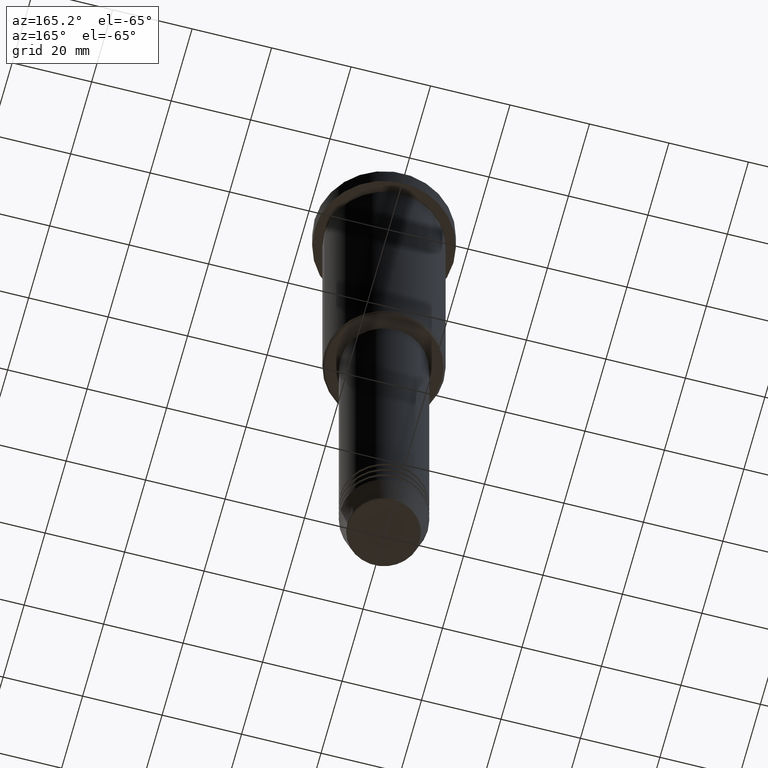
[diagram: clean part render]
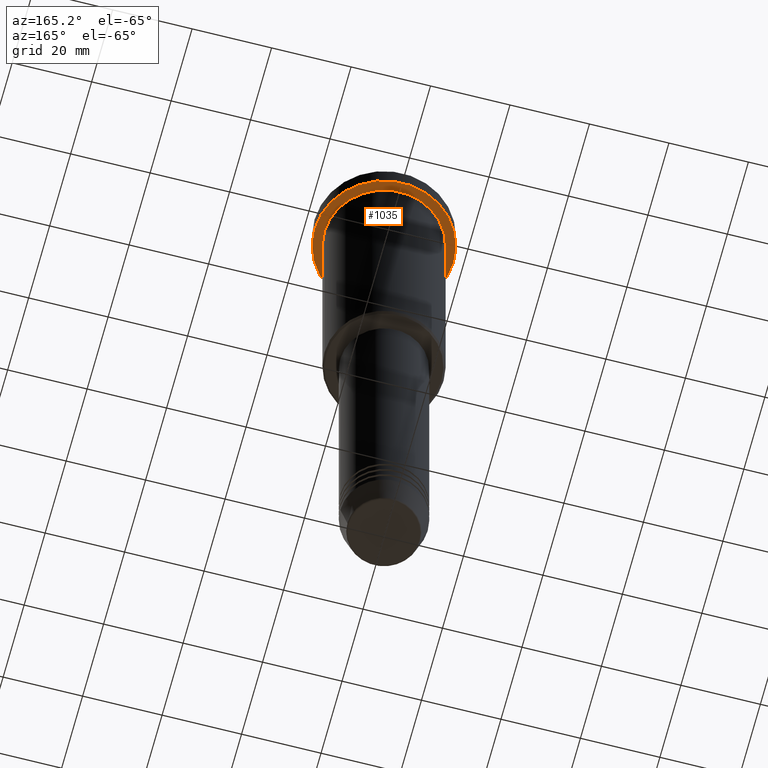
[diagram: same view with one face highlighted and labeled with its STEP entity id]
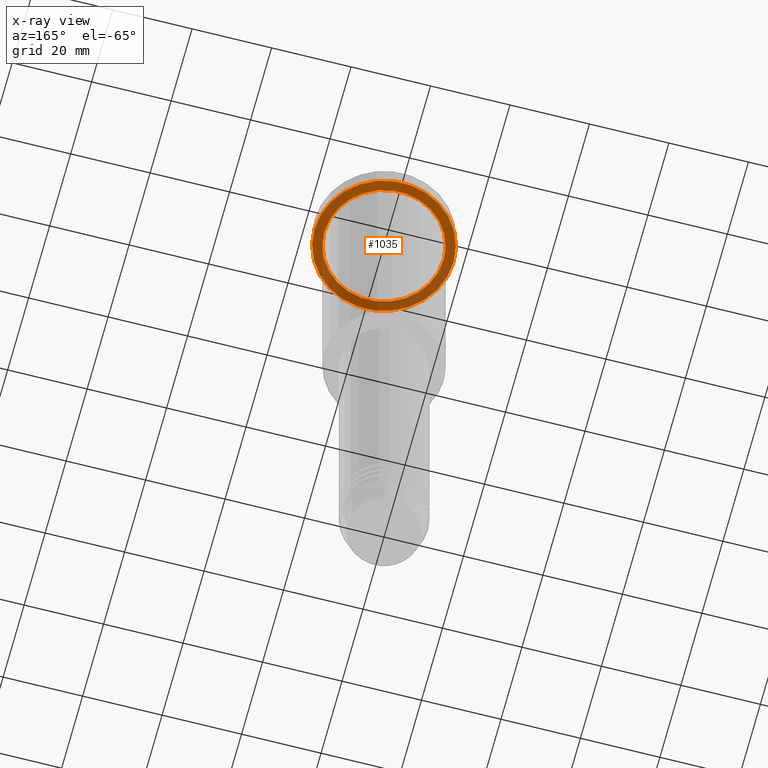
[diagram: x-ray of the same camera — body ghosted, the highlighted face saturated]
A machine part, auxiliary view. The second image highlights one B-rep face of the part: STEP entity #1035.
The next image is the same camera in x-ray: the body ghosted, the highlighted face saturated — about 37% of this face is hidden behind the body in this view.
In plain terms, the highlighted planar face has unit normal (0, 0, -1).
Its self-contained STEP definition (entity closure, byte-faithful):
#1 = DIRECTION ( 'NONE',  ( -1.000000000000000000, 0.000000000000000000, -0.000000000000000000 ) ) ;
#65 = DIRECTION ( 'NONE',  ( -0.000000000000000000, -0.000000000000000000, 1.000000000000000000 ) ) ;
#118 = VERTEX_POINT ( 'NONE', #145 ) ;
#145 = CARTESIAN_POINT ( 'NONE',  ( -15.00000000000000000, 0.000000000000000000, -5.999999999999994671 ) ) ;
#157 = DIRECTION ( 'NONE',  ( -0.000000000000000000, -0.000000000000000000, 1.000000000000000000 ) ) ;
#248 = CARTESIAN_POINT ( 'NONE',  ( 0.000000000000000000, 0.000000000000000000, -5.999999999999995559 ) ) ;
#263 = CARTESIAN_POINT ( 'NONE',  ( 0.000000000000000000, 0.000000000000000000, -5.999999999999995559 ) ) ;
#268 = DIRECTION ( 'NONE',  ( 0.000000000000000000, 0.000000000000000000, -1.000000000000000000 ) ) ;
#309 = AXIS2_PLACEMENT_3D ( 'NONE', #706, #541, #898 ) ;
#352 = DIRECTION ( 'NONE',  ( -1.000000000000000000, 0.000000000000000000, 0.000000000000000000 ) ) ;
#428 = CIRCLE ( 'NONE', #309, 17.50000000000000000 ) ;
#436 = CARTESIAN_POINT ( 'NONE',  ( -17.50000000000000000, 2.143131898507868248E-15, -5.999999999999995559 ) ) ;
#452 = VERTEX_POINT ( 'NONE', #1038 ) ;
#457 = CARTESIAN_POINT ( 'NONE',  ( 0.000000000000000000, 0.000000000000000000, -5.999999999999995559 ) ) ;
#476 = EDGE_CURVE ( 'NONE', #118, #452, #656, .T. ) ;
#486 = ORIENTED_EDGE ( 'NONE', *, *, #1000, .T. ) ;
#493 = EDGE_CURVE ( 'NONE', #534, #1033, #548, .T. ) ;
#512 = EDGE_CURVE ( 'NONE', #1033, #534, #428, .T. ) ;
#518 = CARTESIAN_POINT ( 'NONE',  ( 17.50000000000000000, 0.000000000000000000, -5.999999999999995559 ) ) ;
#534 = VERTEX_POINT ( 'NONE', #518 ) ;
#541 = DIRECTION ( 'NONE',  ( -0.000000000000000000, -0.000000000000000000, 1.000000000000000000 ) ) ;
#548 = CIRCLE ( 'NONE', #693, 17.50000000000000000 ) ;
#588 = CARTESIAN_POINT ( 'NONE',  ( 0.000000000000000000, 17.50000000000000000, -5.999999999999995559 ) ) ;
#591 = ORIENTED_EDGE ( 'NONE', *, *, #512, .F. ) ;
#656 = CIRCLE ( 'NONE', #806, 15.00000000000000000 ) ;
#693 = AXIS2_PLACEMENT_3D ( 'NONE', #248, #157, #1155 ) ;
#706 = CARTESIAN_POINT ( 'NONE',  ( 0.000000000000000000, 0.000000000000000000, -5.999999999999995559 ) ) ;
#738 = EDGE_LOOP ( 'NONE', ( #798, #591 ) ) ;
#767 = CIRCLE ( 'NONE', #904, 15.00000000000000000 ) ;
#795 = FACE_BOUND ( 'NONE', #853, .T. ) ;
#797 = PLANE ( 'NONE',  #1029 ) ;
#798 = ORIENTED_EDGE ( 'NONE', *, *, #493, .F. ) ;
#806 = AXIS2_PLACEMENT_3D ( 'NONE', #457, #65, #1060 ) ;
#853 = EDGE_LOOP ( 'NONE', ( #936, #486 ) ) ;
#898 = DIRECTION ( 'NONE',  ( 1.000000000000000000, 0.000000000000000000, 0.000000000000000000 ) ) ;
#904 = AXIS2_PLACEMENT_3D ( 'NONE', #263, #1145, #352 ) ;
#936 = ORIENTED_EDGE ( 'NONE', *, *, #476, .T. ) ;
#972 = FACE_OUTER_BOUND ( 'NONE', #738, .T. ) ;
#1000 = EDGE_CURVE ( 'NONE', #452, #118, #767, .T. ) ;
#1029 = AXIS2_PLACEMENT_3D ( 'NONE', #588, #268, #1 ) ;
#1033 = VERTEX_POINT ( 'NONE', #436 ) ;
#1035 = ADVANCED_FACE ( 'NONE', ( #795, #972 ), #797, .T. ) ;
#1038 = CARTESIAN_POINT ( 'NONE',  ( 15.00000000000000000, 1.836970198721029589E-15, -5.999999999999994671 ) ) ;
#1060 = DIRECTION ( 'NONE',  ( -1.000000000000000000, 0.000000000000000000, 0.000000000000000000 ) ) ;
#1145 = DIRECTION ( 'NONE',  ( -0.000000000000000000, -0.000000000000000000, 1.000000000000000000 ) ) ;
#1155 = DIRECTION ( 'NONE',  ( 1.000000000000000000, 0.000000000000000000, 0.000000000000000000 ) ) ;